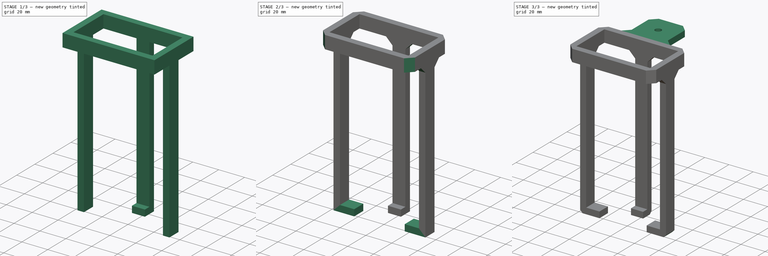
[diagram: build sequence overview — one tinted view per stage of 3, left to right]
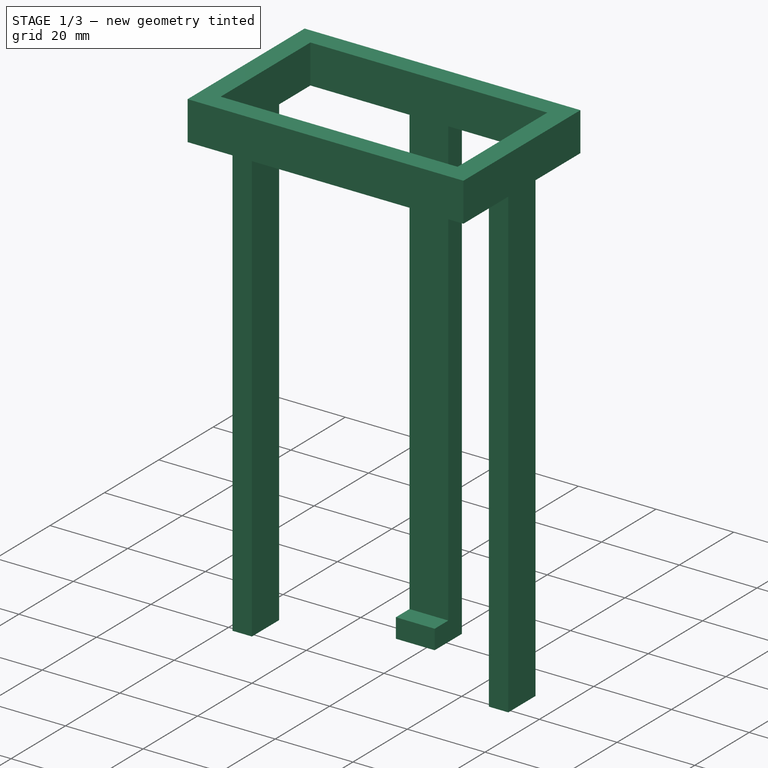
[diagram: stage 1 of 3 — iso view after this stage's code; geometry added in this stage tinted green]
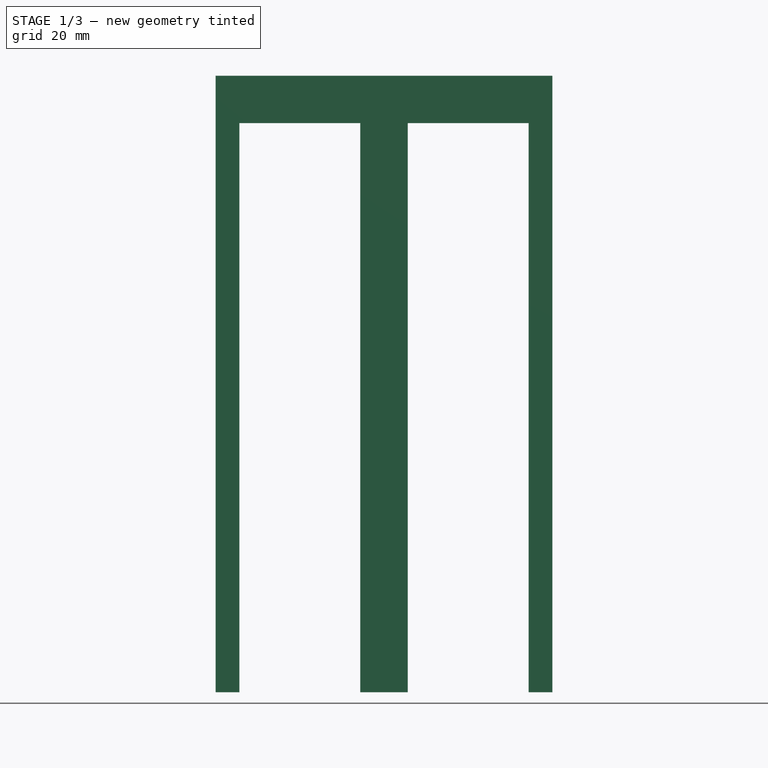
[diagram: stage 1 of 3 — front view after this stage's code; geometry added in this stage tinted green]
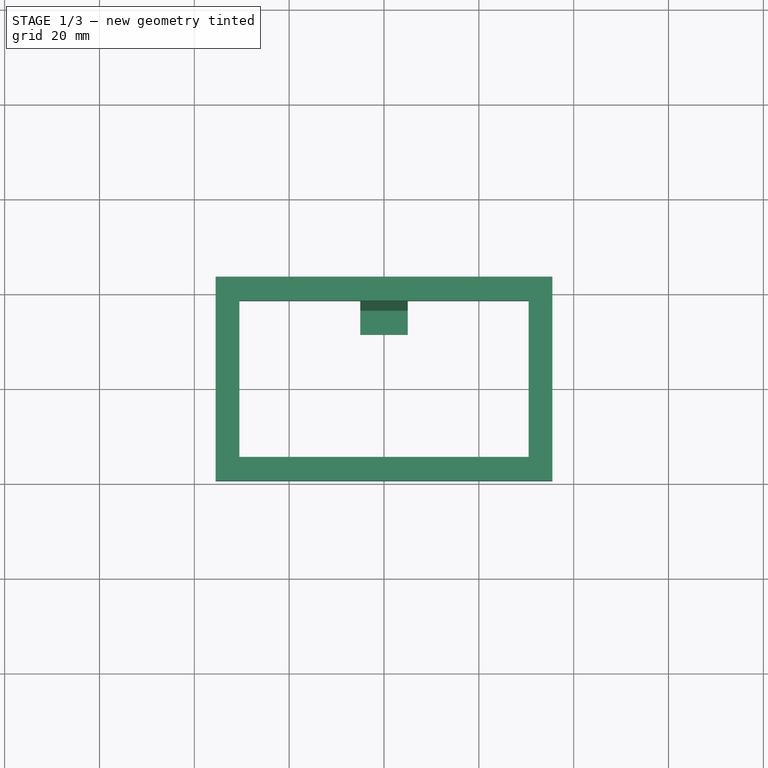
[diagram: stage 1 of 3 — top view after this stage's code; geometry added in this stage tinted green]
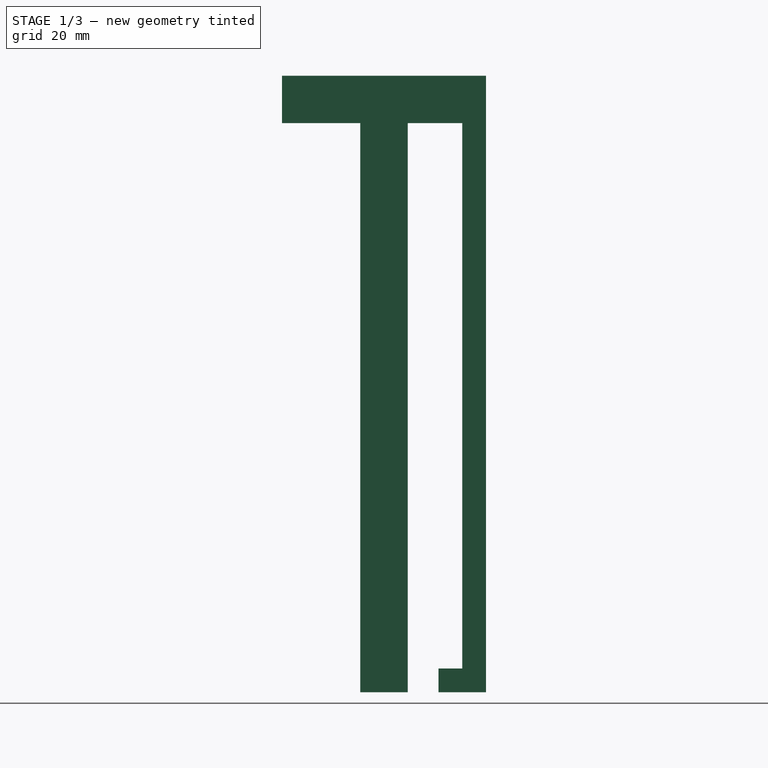
[diagram: stage 1 of 3 — right view after this stage's code; geometry added in this stage tinted green]
FCSTD DOCUMENT  (FreeCAD 1.0R39319 (Git))
Label: dlp-power-supply-bracket
License: All rights reserved
objects: Sketcher::SketchObject×5, PartDesign::Pad×5, PartDesign::Chamfer×3, PartDesign::Body×1, App::Part×1
note: 35 computed .brp shape members not serialized (recipe doc carries the construction recipe); baked Part::Feature solids carry a one-line shape summary decoded from their .brp

FEATURE [Sketcher::SketchObject] Sketch
  ArcFitTolerance = 1e-06
  AttachmentSupport = -> [XY_Plane001]
  FullyConstrained = true
  MakeInternals = false
  MapMode = 5
  sketch-geometry (10):
    g0: LineSegment StartX=-30.5 StartY=-16.5 StartZ=0 EndX=30.5 EndY=-16.5 EndZ=0
    g1: LineSegment StartX=30.5 StartY=-16.5 StartZ=0 EndX=30.5 EndY=16.5 EndZ=0
    g2: LineSegment StartX=30.5 StartY=16.5 StartZ=0 EndX=-30.5 EndY=16.5 EndZ=0
    g3: LineSegment StartX=-30.5 StartY=16.5 StartZ=0 EndX=-30.5 EndY=-16.5 EndZ=0
    g4: GeomPoint [constr] X=0 Y=0 Z=0
    g5: LineSegment StartX=-35.5 StartY=-21.5 StartZ=0 EndX=35.5 EndY=-21.5 EndZ=0
    g6: LineSegment StartX=35.5 StartY=-21.5 StartZ=0 EndX=35.5 EndY=21.5 EndZ=0
    g7: LineSegment StartX=35.5 StartY=21.5 StartZ=0 EndX=-35.5 EndY=21.5 EndZ=0
    g8: LineSegment StartX=-35.5 StartY=21.5 StartZ=0 EndX=-35.5 EndY=-21.5 EndZ=0
    g9: GeomPoint [constr] X=0 Y=0 Z=0
  constraints (24):
    c: Coincident(g0,g1)
    c: Coincident(g1,g2)
    c: Coincident(g2,g3)
    c: Coincident(g3,g0)
    c: Horizontal(g0)
    c: Horizontal(g2)
    c: Vertical(g1)
    c: Vertical(g3)
    c: Symmetric(g2,g0,g4)
    c: Distance(g1,g3) = 61
    c: Distance(g0,g2) = 33
    c: Coincident(g4,g-1)
    c: Coincident(g5,g6)
    c: Coincident(g6,g7)
    c: Coincident(g7,g8)
    c: Coincident(g8,g5)
    c: Horizontal(g5)
    c: Horizontal(g7)
    c: Vertical(g6)
    c: Vertical(g8)
    c: Symmetric(g7,g5,g9)
    c: Distance(g6,g8) = 71
    c: Distance(g5,g7) = 43
    c: Coincident(g9,g4)
FEATURE [PartDesign::Pad] Pad
  Direction = (0,0,1)
  Length = 10
  Length2 = 10
  Profile = -> Sketch
  ReferenceAxis = -> Sketch [N_Axis]
  Refine = true
  Suppressed = false
  Type = 0
FEATURE [Sketcher::SketchObject] Sketch001
  ArcFitTolerance = 1e-06
  AttachmentSupport = -> [Pad]
  FullyConstrained = true
  MakeInternals = false
  MapMode = 5
  Placement = pos=(0,0,0) rot=(1,0,0;3.14159rad)
  sketch-geometry (22):
    g0: LineSegment [constr] StartX=-30.5 StartY=-5 StartZ=0 EndX=30.5 EndY=-5 EndZ=0
    g1: LineSegment [constr] StartX=30.5 StartY=-5 StartZ=0 EndX=30.5 EndY=5 EndZ=0
    g2: LineSegment [constr] StartX=30.5 StartY=5 StartZ=0 EndX=-30.5 EndY=5 EndZ=0
    g3: LineSegment [constr] StartX=-30.5 StartY=5 StartZ=0 EndX=-30.5 EndY=-5 EndZ=0
    g4: GeomPoint [constr] X=0 Y=0 Z=0
    g5: LineSegment StartX=-30.5 StartY=5 StartZ=0 EndX=-35.5 EndY=5 EndZ=0
    g6: LineSegment StartX=-35.5 StartY=5 StartZ=0 EndX=-35.5 EndY=-5 EndZ=0
    g7: LineSegment StartX=-35.5 StartY=-5 StartZ=0 EndX=-30.5 EndY=-5 EndZ=0
    g8: LineSegment StartX=-30.5 StartY=-5 StartZ=0 EndX=-30.5 EndY=5 EndZ=0
    g9: LineSegment StartX=30.5 StartY=5 StartZ=0 EndX=30.5 EndY=-5 EndZ=0
    g10: LineSegment StartX=30.5 StartY=-5 StartZ=0 EndX=35.5 EndY=-5 EndZ=0
    g11: LineSegment StartX=35.5 StartY=-5 StartZ=0 EndX=35.5 EndY=5 EndZ=0
    g12: LineSegment StartX=35.5 StartY=5 StartZ=0 EndX=30.5 EndY=5 EndZ=0
    g13: LineSegment [constr] StartX=-5 StartY=-21.5 StartZ=0 EndX=5 EndY=-21.5 EndZ=0
    g14: LineSegment [constr] StartX=5 StartY=-21.5 StartZ=0 EndX=5 EndY=21.5 EndZ=0
    g15: LineSegment [constr] StartX=5 StartY=21.5 StartZ=0 EndX=-5 EndY=21.5 EndZ=0
    g16: LineSegment [constr] StartX=-5 StartY=21.5 StartZ=0 EndX=-5 EndY=-21.5 EndZ=0
    g17: GeomPoint [constr] X=0 Y=0 Z=0
    g18: LineSegment StartX=5 StartY=-21.5 StartZ=0 EndX=5 EndY=-16.5 EndZ=0
    g19: LineSegment StartX=5 StartY=-16.5 StartZ=0 EndX=-5 EndY=-16.5 EndZ=0
    g20: LineSegment StartX=-5 StartY=-16.5 StartZ=0 EndX=-5 EndY=-21.5 EndZ=0
    g21: LineSegment StartX=-5 StartY=-21.5 StartZ=0 EndX=5 EndY=-21.5 EndZ=0
  constraints (57):
    c: Coincident(g0,g1)
    c: Coincident(g1,g2)
    c: Coincident(g2,g3)
    c: Coincident(g3,g0)
    c: Horizontal(g0)
    c: Horizontal(g2)
    c: Vertical(g1)
    c: Vertical(g3)
    c: Symmetric(g2,g0,g4)
    c: Distance(g1,g3) = 61
    c: Distance(g0,g2) = 10
    c: Coincident(g4,g-1)
    c: Coincident(g5,g6)
    c: Coincident(g6,g7)
    c: Coincident(g7,g8)
    c: Coincident(g8,g5)
    c: Horizontal(g5)
    c: Horizontal(g7)
    c: Vertical(g6)
    c: Vertical(g8)
    c: Distance(g6,g8) = 5
    c: Distance(g5,g7) = 10
    c: Coincident(g5,g2)
    c: Coincident(g9,g10)
    c: Coincident(g10,g11)
    c: Coincident(g11,g12)
    c: Coincident(g12,g9)
    c: Vertical(g9)
    c: Vertical(g11)
    c: Horizontal(g10)
    c: Horizontal(g12)
    c: Distance(g9,g11) = 5
    c: Distance(g10,g12) = 10
    c: Coincident(g9,g1)
    c: Coincident(g13,g14)
    c: Coincident(g14,g15)
    c: Coincident(g15,g16)
    c: Coincident(g16,g13)
    c: Horizontal(g13)
    c: Horizontal(g15)
    c: Vertical(g14)
    c: Vertical(g16)
    c: Symmetric(g15,g13,g17)
    c: Distance(g14,g16) = 10
    c: Distance(g13,g15) = 43
    c: Coincident(g17,g4)
    c: Coincident(g18,g19)
    c: Coincident(g19,g20)
    c: Coincident(g20,g21)
    c: Coincident(g21,g18)
    c: Vertical(g18)
    c: Vertical(g20)
    c: Horizontal(g19)
    c: Horizontal(g21)
    c: Distance(g19,g21) = 5
    c: Coincident(g18,g13)
    c: PointOnObject(g19,g16)
FEATURE [PartDesign::Pad] Pad001
  BaseFeature = -> Pad
  Direction = (0,0,-1)
  Length = 120
  Length2 = 10
  Profile = -> Sketch001
  ReferenceAxis = -> Sketch001 [N_Axis]
  Refine = true
  Suppressed = false
  Type = 0
FEATURE [Sketcher::SketchObject] Sketch002
  ArcFitTolerance = 1e-06
  AttachmentSupport = -> [Pad001]
  FullyConstrained = true
  MakeInternals = false
  MapMode = 5
  Placement = pos=(0,16.5,0) rot=(1,0,0;1.5708rad)
  sketch-geometry (6):
    g0: LineSegment [constr] StartX=0 StartY=0 StartZ=0 EndX=7.2e-15 EndY=-117.5 EndZ=0
    g1: LineSegment StartX=-5 StartY=-120 StartZ=0 EndX=5 EndY=-120 EndZ=0
    g2: LineSegment StartX=5 StartY=-120 StartZ=0 EndX=5 EndY=-115 EndZ=0
    g3: LineSegment StartX=5 StartY=-115 StartZ=0 EndX=-5 EndY=-115 EndZ=0
    g4: LineSegment StartX=-5 StartY=-115 StartZ=0 EndX=-5 EndY=-120 EndZ=0
    g5: GeomPoint [constr] X=7.2e-15 Y=-117.5 Z=0
  constraints (15):
    c: Distance(g0) = 117.5
    c: Angle(g-1,g0) = -1.5708
    c: Coincident(g0,g-1)
    c: Coincident(g1,g2)
    c: Coincident(g2,g3)
    c: Coincident(g3,g4)
    c: Coincident(g4,g1)
    c: Horizontal(g1)
    c: Horizontal(g3)
    c: Vertical(g2)
    c: Vertical(g4)
    c: Symmetric(g3,g1,g5)
    c: Distance(g2,g4) = 10
    c: Distance(g1,g3) = 5
    c: Coincident(g5,g0)
FEATURE [PartDesign::Pad] Pad002
  BaseFeature = -> Pad001
  Direction = (0,-1,2e-16)
  Length = 5
  Length2 = 10
  Profile = -> Sketch002
  ReferenceAxis = -> Sketch002 [N_Axis]
  Refine = true
  Suppressed = false
  Type = 0
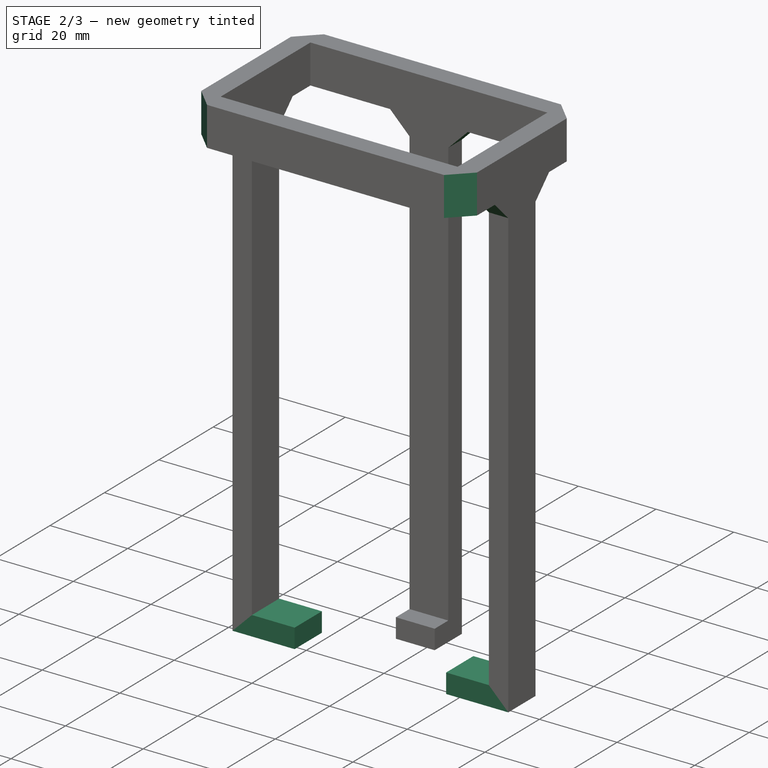
[diagram: stage 2 of 3 — iso view after this stage's code; geometry added in this stage tinted green]
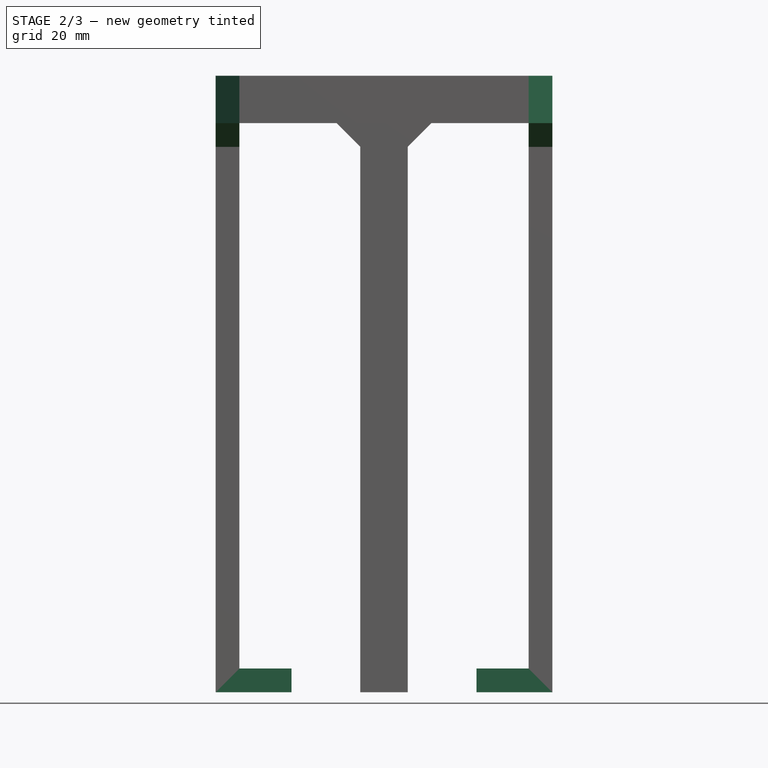
[diagram: stage 2 of 3 — front view after this stage's code; geometry added in this stage tinted green]
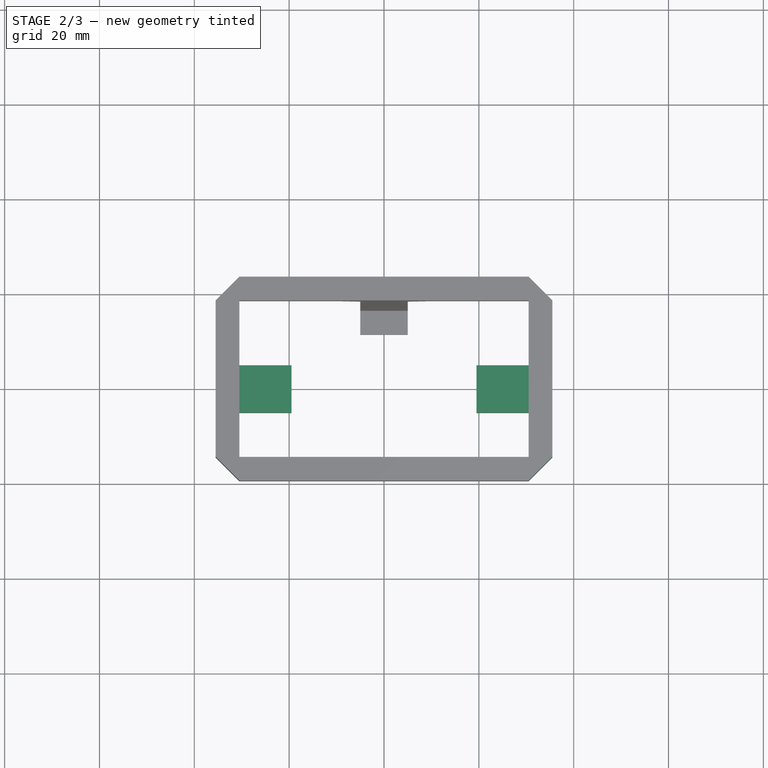
[diagram: stage 2 of 3 — top view after this stage's code; geometry added in this stage tinted green]
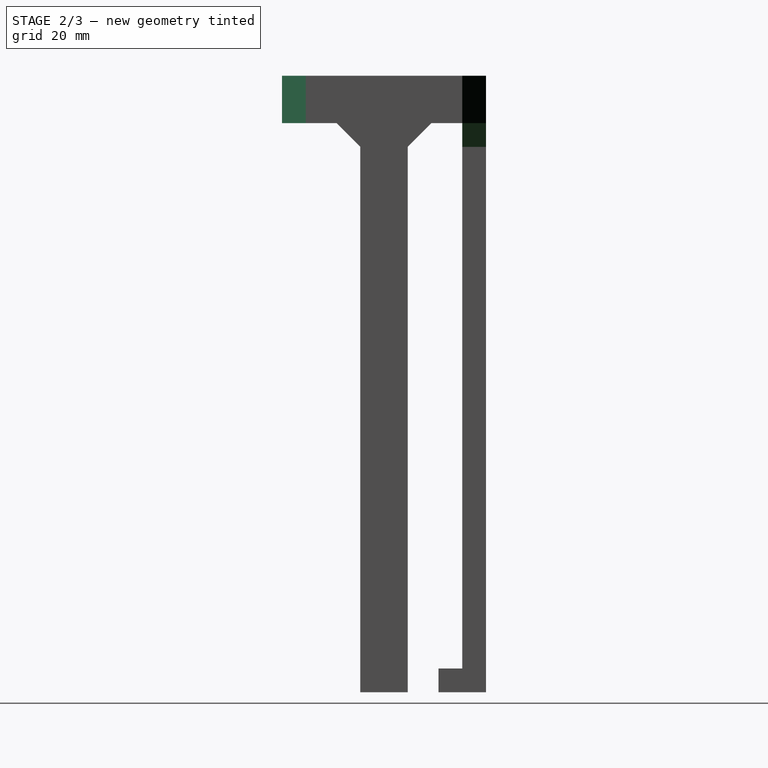
[diagram: stage 2 of 3 — right view after this stage's code; geometry added in this stage tinted green]
FEATURE [Sketcher::SketchObject] Sketch003
  ArcFitTolerance = 1e-06
  AttachmentSupport = -> [Pad002]
  FullyConstrained = true
  MakeInternals = false
  MapMode = 5
  Placement = pos=(0,0,-120) rot=(1,0,0;3.14159rad)
  sketch-geometry (15):
    g0: LineSegment [constr] StartX=-35.5 StartY=-5 StartZ=0 EndX=35.5 EndY=-5 EndZ=0
    g1: LineSegment [constr] StartX=35.5 StartY=-5 StartZ=0 EndX=35.5 EndY=5 EndZ=0
    g2: LineSegment [constr] StartX=35.5 StartY=5 StartZ=0 EndX=-35.5 EndY=5 EndZ=0
    g3: LineSegment [constr] StartX=-35.5 StartY=5 StartZ=0 EndX=-35.5 EndY=-5 EndZ=0
    g4: GeomPoint [constr] X=0 Y=0 Z=0
    g5: LineSegment StartX=-35.5 StartY=5 StartZ=0 EndX=-35.5 EndY=-5 EndZ=0
    g6: LineSegment [constr] StartX=-35.5 StartY=-5 StartZ=0 EndX=-19.5 EndY=-5 EndZ=0
    g7: LineSegment StartX=-19.5 StartY=-5 StartZ=0 EndX=-19.5 EndY=5 EndZ=0
    g8: LineSegment StartX=-19.5 StartY=5 StartZ=0 EndX=-35.5 EndY=5 EndZ=0
    g9: LineSegment StartX=35.5 StartY=5 StartZ=0 EndX=19.5 EndY=5 EndZ=0
    g10: LineSegment StartX=19.5 StartY=5 StartZ=0 EndX=19.5 EndY=-5 EndZ=0
    g11: LineSegment [constr] StartX=19.5 StartY=-5 StartZ=0 EndX=35.5 EndY=-5 EndZ=0
    g12: LineSegment StartX=35.5 StartY=-5 StartZ=0 EndX=35.5 EndY=5 EndZ=0
    g13: LineSegment StartX=-35.5 StartY=-5 StartZ=0 EndX=-19.5 EndY=-5 EndZ=0
    g14: LineSegment StartX=19.5 StartY=-5 StartZ=0 EndX=35.5 EndY=-5 EndZ=0
  constraints (38):
    c: Coincident(g0,g1)
    c: Coincident(g1,g2)
    c: Coincident(g2,g3)
    c: Coincident(g3,g0)
    c: Horizontal(g0)
    c: Horizontal(g2)
    c: Vertical(g1)
    c: Vertical(g3)
    c: Symmetric(g2,g0,g4)
    c: Distance(g1,g3) = 71
    c: Distance(g0,g2) = 10
    c: Coincident(g4,g-1)
    c: Coincident(g5,g6)
    c: Coincident(g6,g7)
    c: Coincident(g7,g8)
    c: Coincident(g8,g5)
    c: Vertical(g5)
    c: Vertical(g7)
    c: Horizontal(g6)
    c: Horizontal(g8)
    c: Distance(g5,g7) = 16
    c: Coincident(g5,g2)
    c: PointOnObject(g6,g0)
    c: Coincident(g9,g10)
    c: Coincident(g10,g11)
    c: Coincident(g11,g12)
    c: Coincident(g12,g9)
    c: Horizontal(g9)
    c: Horizontal(g11)
    c: Vertical(g10)
    c: Vertical(g12)
    c: Distance(g10,g12) = 16
    c: Coincident(g9,g1)
    c: PointOnObject(g10,g0)
    c: Coincident(g13,g0)
    c: Coincident(g13,g6)
    c: Coincident(g14,g10)
    c: Coincident(g14,g0)
FEATURE [PartDesign::Pad] Pad003
  BaseFeature = -> Pad002
  Direction = (0,0,-1)
  Length = 5
  Length2 = 10
  Profile = -> Sketch003
  ReferenceAxis = -> Sketch003 [N_Axis]
  Refine = true
  Reversed = true
  Suppressed = false
  Type = 0
FEATURE [PartDesign::Chamfer] Chamfer
  Angle = 45
  Base = -> Pad003 [Edge48,Edge53,Edge4,Edge1,Edge34,Edge31,Edge24,Edge59,Edge28,Edge58]
  BaseFeature = -> Pad003
  ChamferType = 0
  FlipDirection = false
  Refine = true
  Size = 5
  Size2 = 1
  SupportTransform = false
  Suppressed = false
  UseAllEdges = false
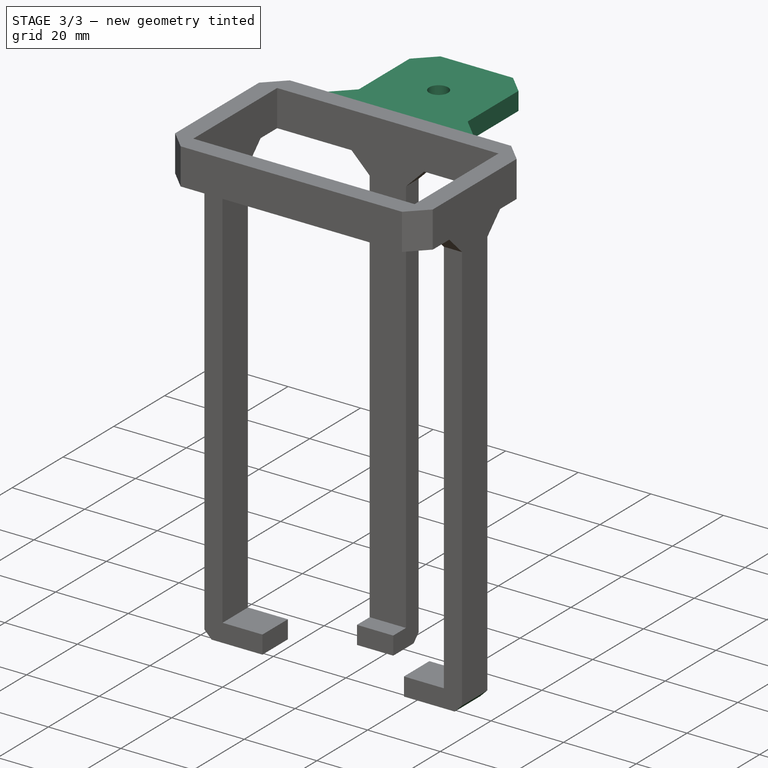
[diagram: stage 3 of 3 — iso view after this stage's code; geometry added in this stage tinted green]
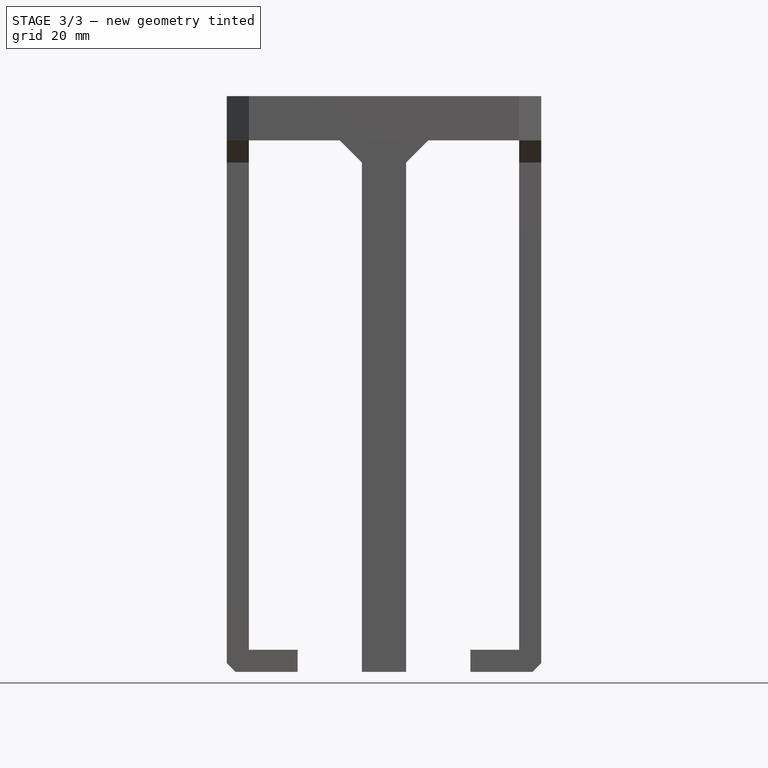
[diagram: stage 3 of 3 — front view after this stage's code; geometry added in this stage tinted green]
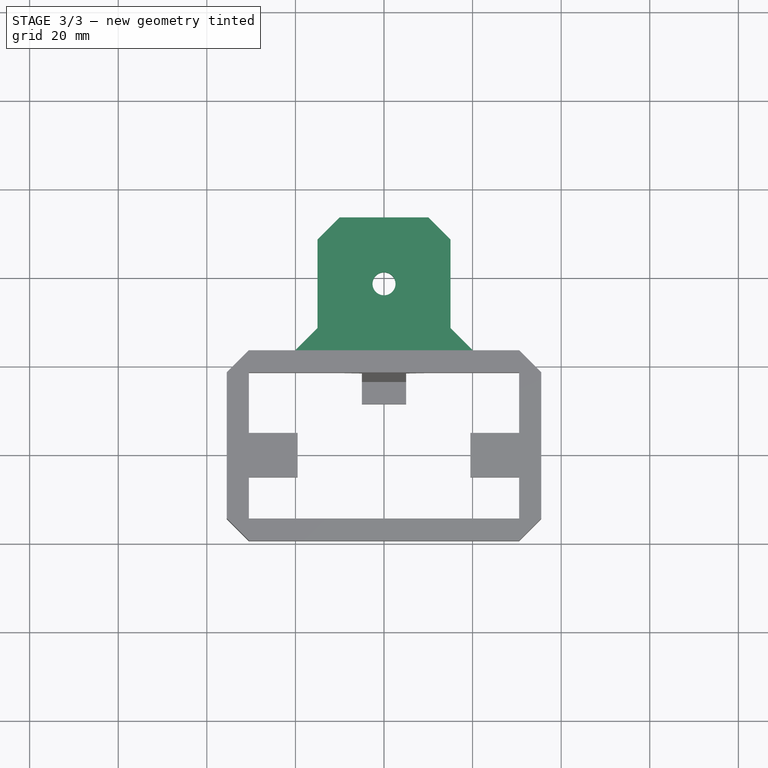
[diagram: stage 3 of 3 — top view after this stage's code; geometry added in this stage tinted green]
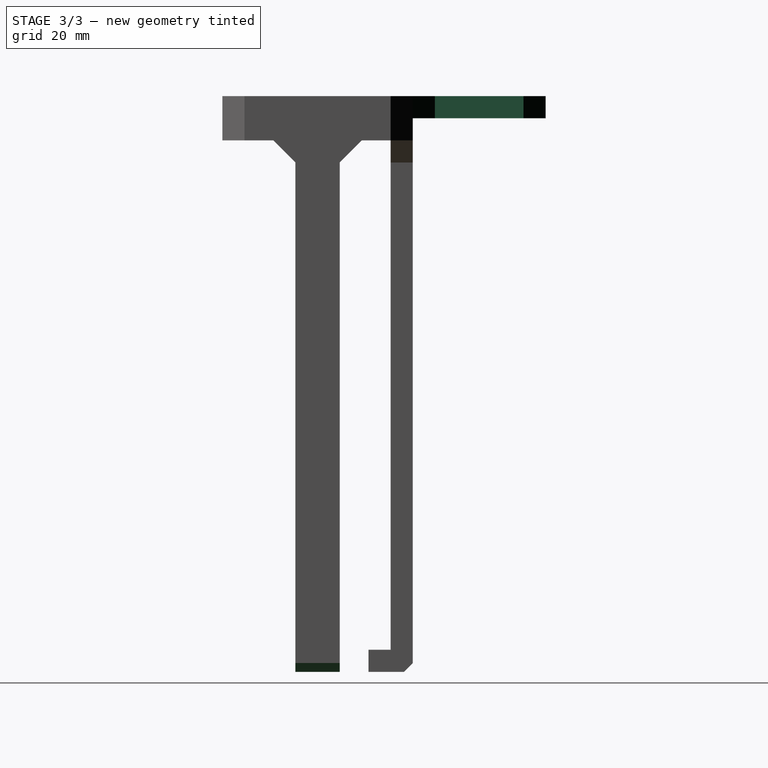
[diagram: stage 3 of 3 — right view after this stage's code; geometry added in this stage tinted green]
FEATURE [Sketcher::SketchObject] Sketch004
  ArcFitTolerance = 1e-06
  AttachmentSupport = -> [Chamfer]
  FullyConstrained = true
  MakeInternals = false
  MapMode = 5
  Placement = pos=(0,0,10) rot=(0,0,1;0rad)
  sketch-geometry (7):
    g0: LineSegment [constr] StartX=0 StartY=0 StartZ=0 EndX=0 EndY=36.5 EndZ=0
    g1: LineSegment StartX=-15 StartY=21.5 StartZ=0 EndX=15 EndY=21.5 EndZ=0
    g2: LineSegment StartX=15 StartY=21.5 StartZ=0 EndX=15 EndY=51.5 EndZ=0
    g3: LineSegment StartX=15 StartY=51.5 StartZ=0 EndX=-15 EndY=51.5 EndZ=0
    g4: LineSegment StartX=-15 StartY=51.5 StartZ=0 EndX=-15 EndY=21.5 EndZ=0
    g5: GeomPoint [constr] X=0 Y=36.5 Z=0
    g6: Circle CenterX=0 CenterY=36.5 CenterZ=0 NormalX=0 NormalY=0 NormalZ=1 AngleXU=0 Radius=2.6
  constraints (17):
    c: Distance(g0) = 36.5
    c: Coincident(g0,g-1)
    c: PointOnObject(g0,g-2)
    c: Coincident(g1,g2)
    c: Coincident(g2,g3)
    c: Coincident(g3,g4)
    c: Coincident(g4,g1)
    c: Horizontal(g1)
    c: Horizontal(g3)
    c: Vertical(g2)
    c: Vertical(g4)
    c: Symmetric(g3,g1,g5)
    c: Distance(g2,g4) = 30
    c: Distance(g1,g3) = 30
    c: Coincident(g5,g0)
    c: Diameter(g6) = 5.2
    c: Coincident(g6,g0)
FEATURE [PartDesign::Pad] Pad004
  BaseFeature = -> Chamfer
  Direction = (0,0,1)
  Length = 5
  Length2 = 10
  Profile = -> Sketch004
  ReferenceAxis = -> Sketch004 [N_Axis]
  Refine = true
  Reversed = true
  Suppressed = false
  Type = 0
FEATURE [PartDesign::Chamfer] Chamfer001
  Angle = 45
  Base = -> Pad004 [Edge40,Edge42,Edge96,Edge90]
  BaseFeature = -> Pad004
  ChamferType = 0
  FlipDirection = false
  Refine = true
  Size = 5
  Size2 = 1
  SupportTransform = false
  Suppressed = false
  UseAllEdges = false
FEATURE [PartDesign::Chamfer] Chamfer002
  Angle = 45
  Base = -> Chamfer001 [Edge78,Edge11,Edge92]
  BaseFeature = -> Chamfer001
  ChamferType = 0
  FlipDirection = false
  Refine = true
  Size = 2
  Size2 = 1
  SupportTransform = false
  Suppressed = false
  UseAllEdges = false
FEATURE [PartDesign::Body] Body  label="dlp-power-supply-bracket-body"
  AllowCompound = false
  Group = -> [Sketch,Pad,Sketch001,Pad001,Sketch002,Pad002,Sketch003,Pad003,Chamfer,Sketch004,Pad004,Chamfer001,Chamfer002]
  Origin = -> Origin001
  Tip = -> Chamfer002
FEATURE [App::Part] Part  label="dlp-power-supply-bracket-part"
  Group = -> [Body]
  Origin = -> Origin
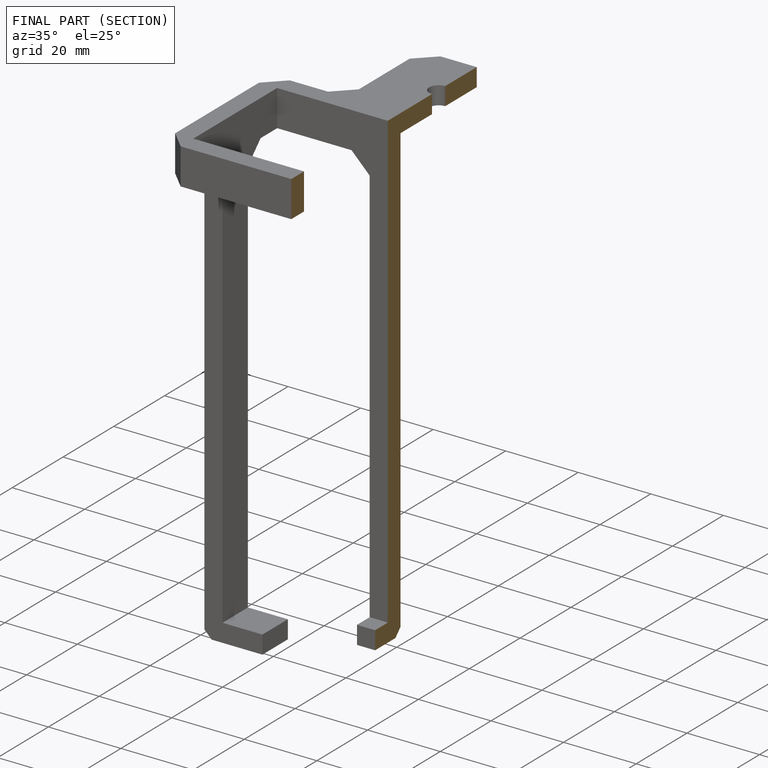
[diagram: finished part — half-section view (interior)]
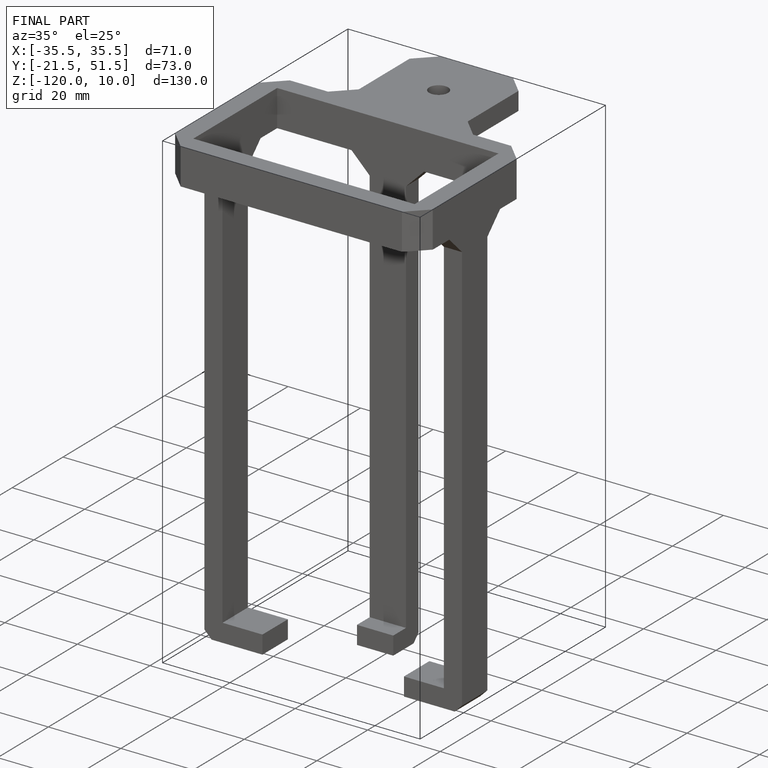
[diagram: finished part — iso view with bounding-box wireframe]
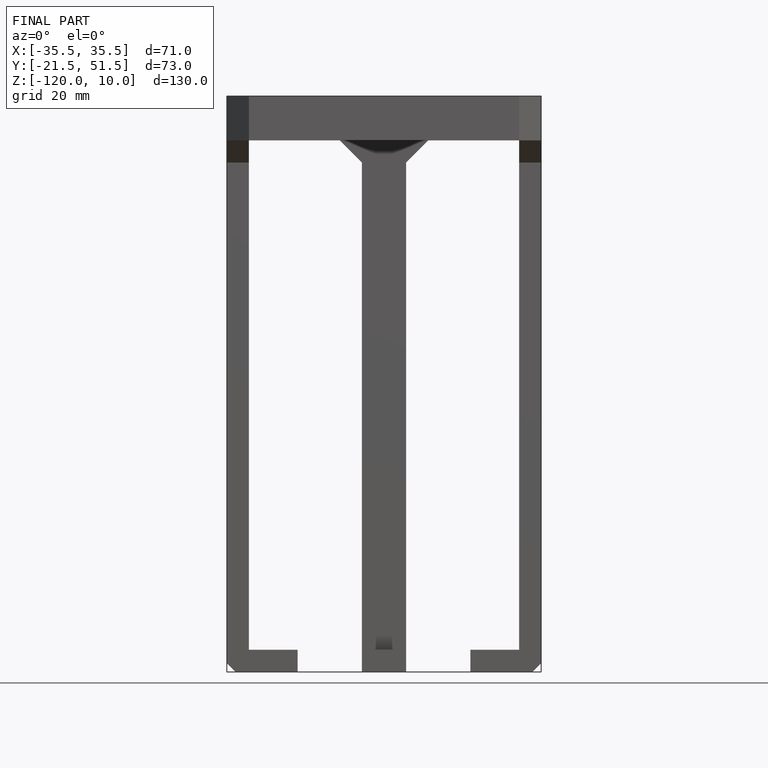
[diagram: finished part — front view with bounding-box wireframe]
